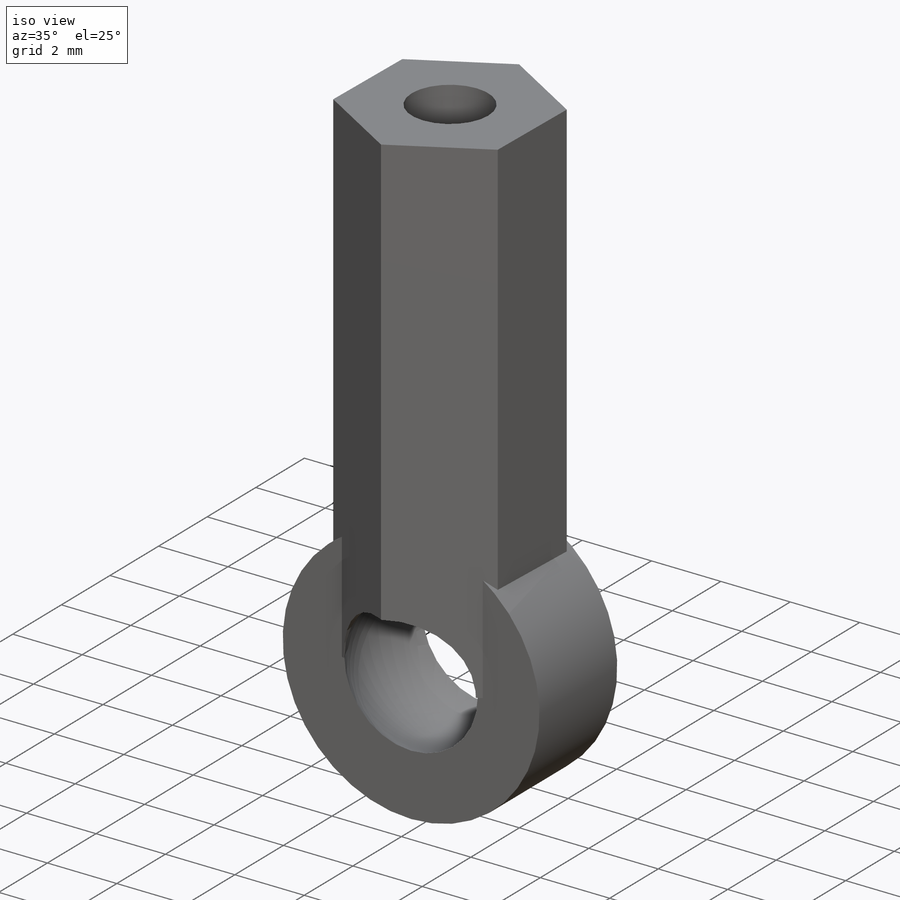
[diagram: iso view]
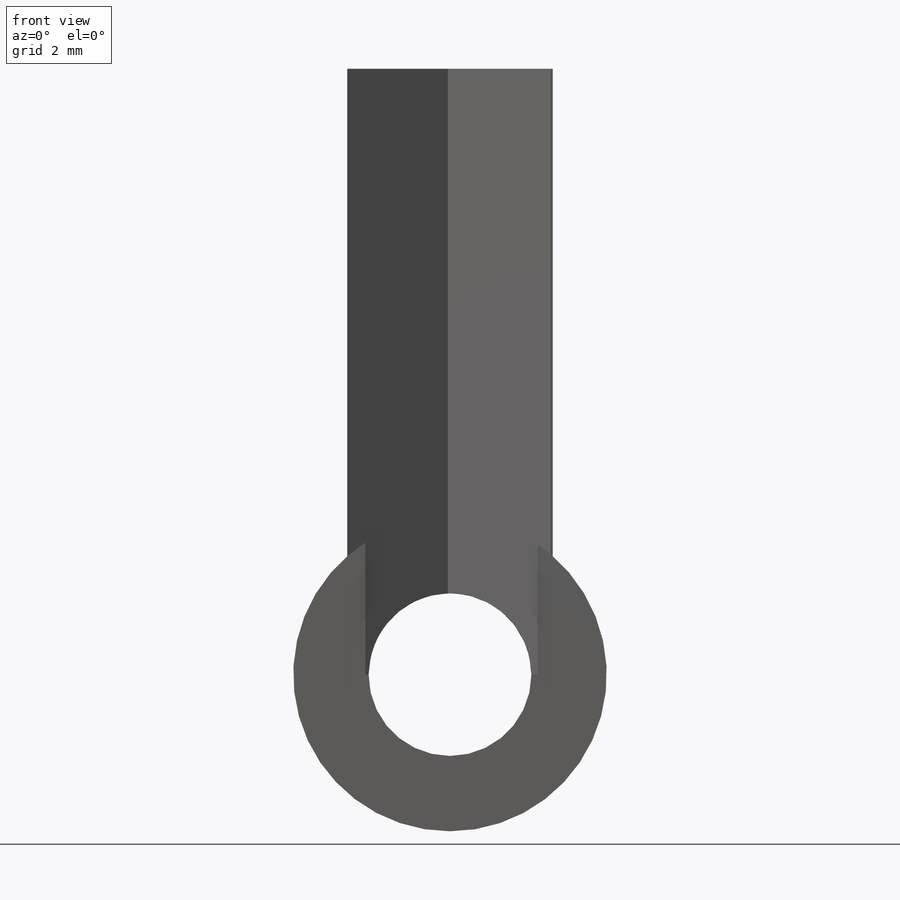
[diagram: front view]
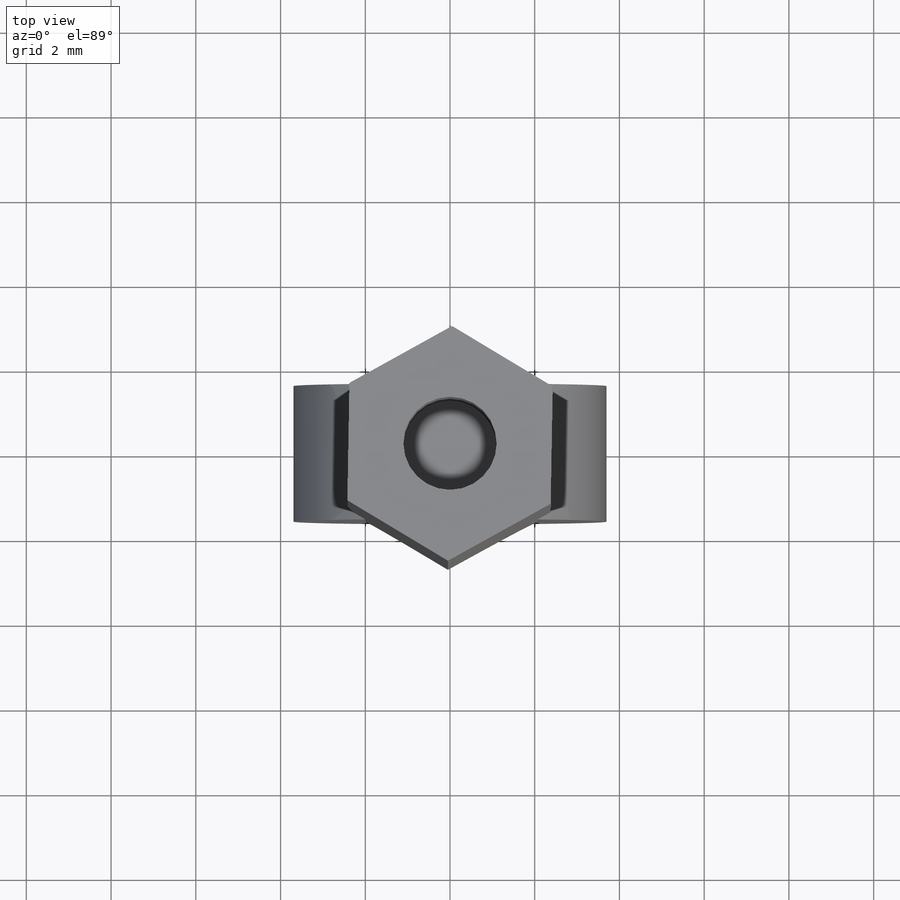
[diagram: top view]
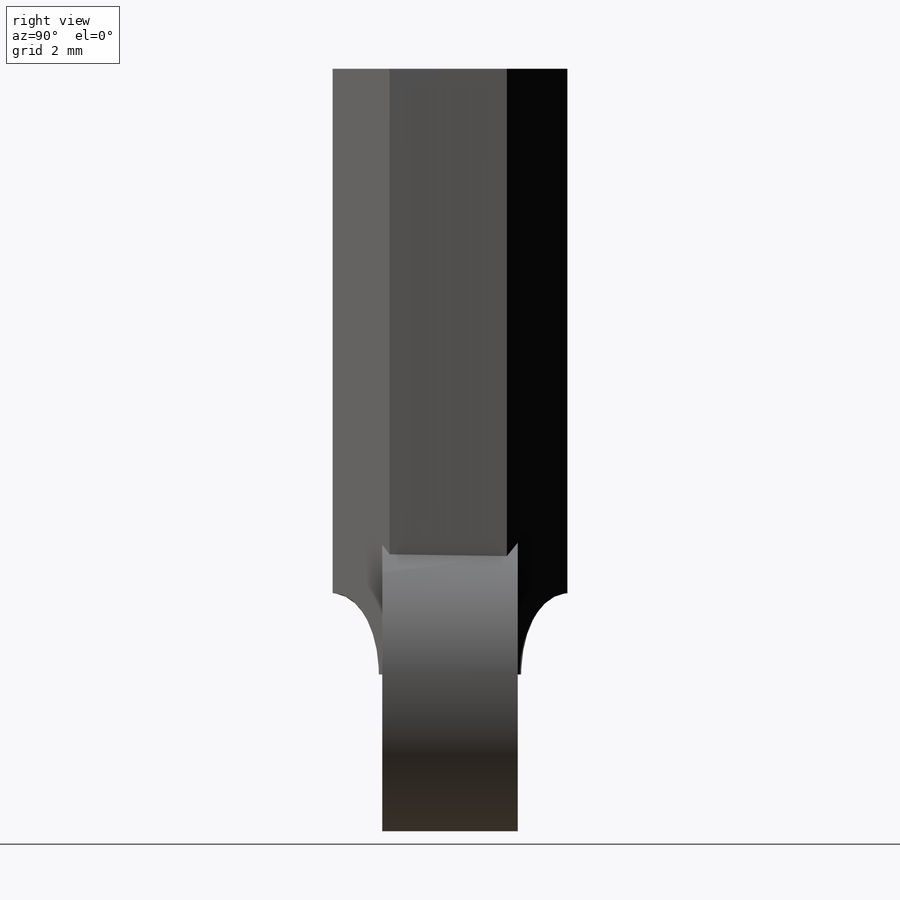
[diagram: right view]
SOLIDWORKS PART (.sldprt)
format: sldprt  version: not decoded by parser v0  size: 187,904 bytes
history: native  units: mm
features: sketch x5, plane x3, extrude x2, cut_extrude x2, material x1, cut_revolve x1 (+9 scaffold rows collapsed)
feature tree (23):
  scaffold x9  (default folders/planes/origin — collapsed)
  material  "材質 <未指定>"
  plane  "前基準面"
  plane  "上基準面"
  plane  "右基準面"
  sketch  "草圖1"  dims[D1=7.4mm]
  extrude  "填料-伸長1"  Depth=1.6mm
  sketch  "草圖8"  dims[D1=4.8mm]
  extrude  "填料-伸長3"  Depth=14.3mm
  sketch  "草圖7"  dims[D1=5.0mm]
  cut_revolve  "除料-旋轉7"  Angle=360deg
  sketch  "草圖9"  dims[D1=2.2mm]
  cut_extrude  "除料-伸長1"  Depth=5mm
  sketch  "草圖10"
  cut_extrude  "除料-伸長2"  [1 undecoded]
decode coverage: 8 of 10 modeling features carry decoded parameters
note: 1 parameter value undecoded
note: suppression state not decoded; provenance and decode notes live in map.json
